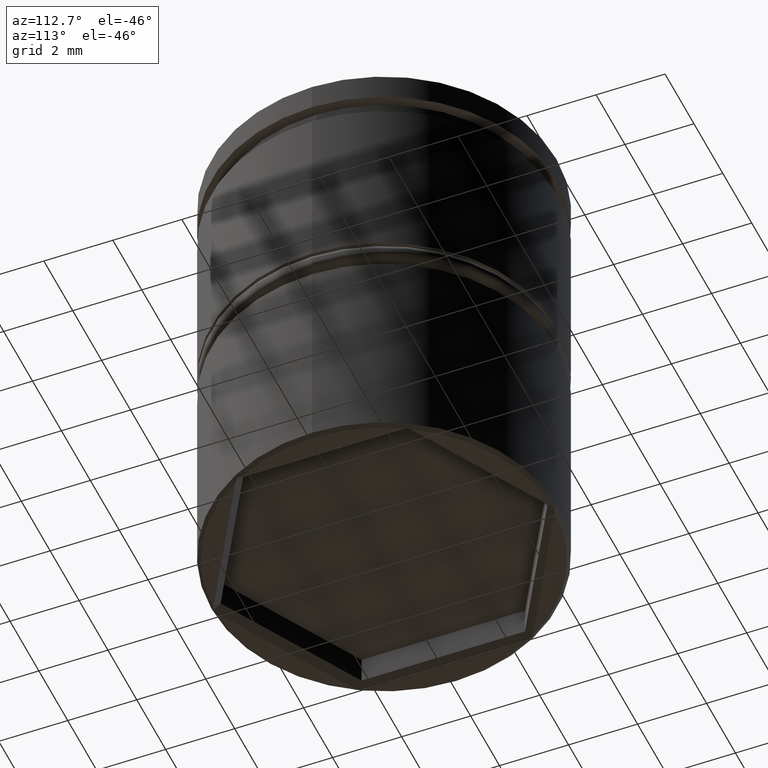
[diagram: clean part render]
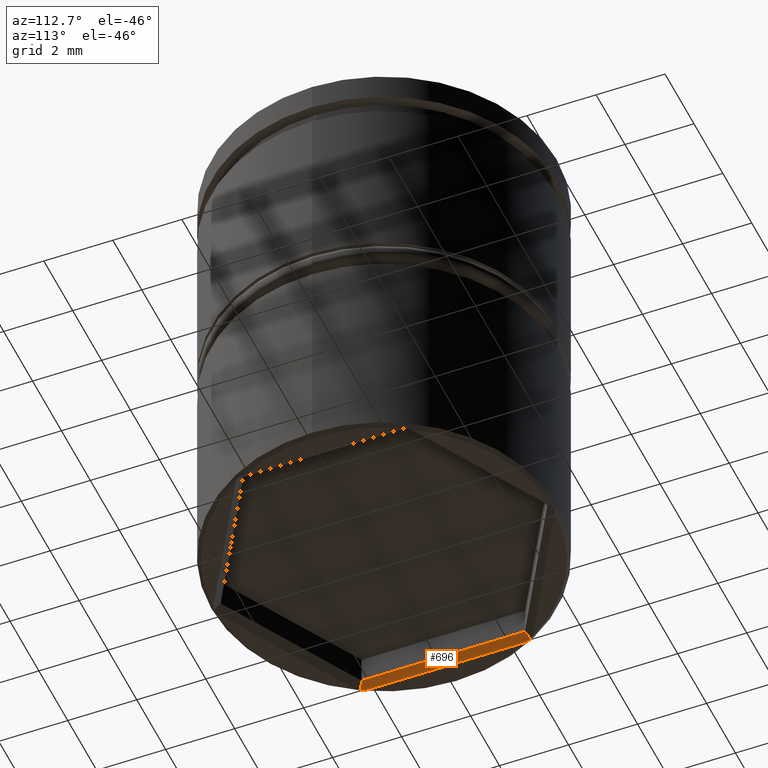
[diagram: same view with one face highlighted and labeled with its STEP entity id]
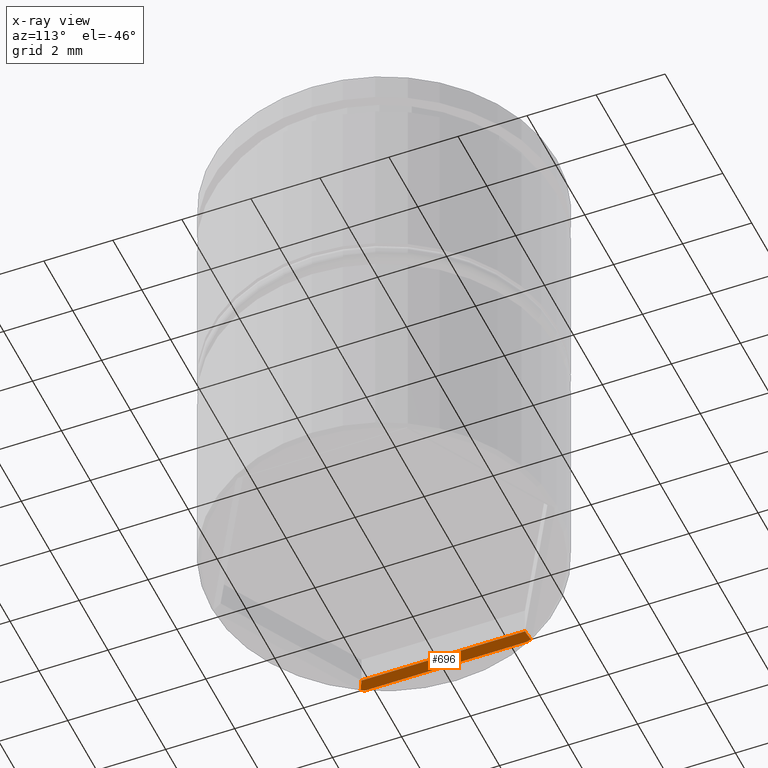
[diagram: x-ray of the same camera — body ghosted, the highlighted face saturated]
A machine part, auxiliary view. The second image highlights one B-rep face of the part: STEP entity #696.
The next image is the same camera in x-ray: the body ghosted, the highlighted face saturated — about 0% of this face is hidden behind the body in this view.
In plain terms, the highlighted planar face has unit normal (0.7071, 0, -0.7071).
Its self-contained STEP definition (entity closure, byte-faithful):
#49 = DIRECTION ( 'NONE',  ( 0.6546536707079813056, 0.3779644730092197036, 0.6546536707079773088 ) ) ;
#57 = VECTOR ( 'NONE', #775, 1000.000000000000000 ) ;
#60 = CARTESIAN_POINT ( 'NONE',  ( -4.300000000000001599, 2.349468024894149298, -13.50000000000000000 ) ) ;
#87 = CARTESIAN_POINT ( 'NONE',  ( -4.280035481254943264, -2.426690125759047412, -13.48003548125494433 ) ) ;
#157 = CARTESIAN_POINT ( 'NONE',  ( -4.269734859267344973, 2.465132570366331155, -13.46973485926734249 ) ) ;
#166 = VERTEX_POINT ( 'NONE', #214 ) ;
#198 = AXIS2_PLACEMENT_3D ( 'NONE', #1120, #1021, #379 ) ;
#201 = ORIENTED_EDGE ( 'NONE', *, *, #267, .T. ) ;
#210 = CARTESIAN_POINT ( 'NONE',  ( -4.100000000000002309, -2.367136103677466963, -13.30000000000000071 ) ) ;
#214 = CARTESIAN_POINT ( 'NONE',  ( -4.300000000000001599, -2.349468024894151075, -13.50000000000000000 ) ) ;
#236 = EDGE_CURVE ( 'NONE', #1196, #166, #1144, .T. ) ;
#266 = FACE_OUTER_BOUND ( 'NONE', #871, .T. ) ;
#267 = EDGE_CURVE ( 'NONE', #588, #531, #472, .T. ) ;
#274 = ORIENTED_EDGE ( 'NONE', *, *, #458, .F. ) ;
#328 = LINE ( 'NONE', #970, #57 ) ;
#358 = ORIENTED_EDGE ( 'NONE', *, *, #236, .F. ) ;
#379 = DIRECTION ( 'NONE',  ( 1.832090974069704843E-16, -1.000000000000000000, 0.000000000000000000 ) ) ;
#405 = CARTESIAN_POINT ( 'NONE',  ( -4.290125711785984564, -2.388133565606518793, -13.49012571178598208 ) ) ;
#406 = CARTESIAN_POINT ( 'NONE',  ( -4.100000000000002309, -2.367136103677466963, -13.30000000000000071 ) ) ;
#458 = EDGE_CURVE ( 'NONE', #166, #1236, #805, .T. ) ;
#472 = LINE ( 'NONE', #604, #1351 ) ;
#522 = CARTESIAN_POINT ( 'NONE',  ( -4.269734859267344973, -2.465132570366328491, -13.46973485926734426 ) ) ;
#531 = VERTEX_POINT ( 'NONE', #634 ) ;
#560 = ORIENTED_EDGE ( 'NONE', *, *, #581, .F. ) ;
#562 = B_SPLINE_CURVE_WITH_KNOTS ( 'NONE', 3,
 ( #157, #585, #1378, #962 ),
 .UNSPECIFIED., .F., .F.,
 ( 4, 4 ),
 ( 4.336808689942017736E-19, 0.0001233298202642885242 ),
 .UNSPECIFIED. ) ;
#581 = EDGE_CURVE ( 'NONE', #811, #531, #328, .T. ) ;
#585 = CARTESIAN_POINT ( 'NONE',  ( -4.280035481254944152, 2.426690125759048744, -13.48003548125494255 ) ) ;
#588 = VERTEX_POINT ( 'NONE', #1092 ) ;
#604 = CARTESIAN_POINT ( 'NONE',  ( -4.100000000000003197, 2.367136103677469183, -13.30000000000000071 ) ) ;
#634 = CARTESIAN_POINT ( 'NONE',  ( -4.100000000000003197, 2.367136103677469183, -13.30000000000000071 ) ) ;
#693 = DIRECTION ( 'NONE',  ( 1.832090974069704843E-16, -1.000000000000000000, 0.000000000000000000 ) ) ;
#696 = ADVANCED_FACE ( 'NONE', ( #266 ), #1233, .T. ) ;
#767 = ORIENTED_EDGE ( 'NONE', *, *, #786, .F. ) ;
#775 = DIRECTION ( 'NONE',  ( -1.832090974069704843E-16, 1.000000000000000000, 0.000000000000000000 ) ) ;
#786 = EDGE_CURVE ( 'NONE', #588, #1196, #562, .T. ) ;
#803 = LINE ( 'NONE', #406, #1356 ) ;
#805 = B_SPLINE_CURVE_WITH_KNOTS ( 'NONE', 3,
 ( #1360, #405, #87, #522 ),
 .UNSPECIFIED., .F., .F.,
 ( 4, 4 ),
 ( 0.000000000000000000, 0.0001233298202642834284 ),
 .UNSPECIFIED. ) ;
#811 = VERTEX_POINT ( 'NONE', #210 ) ;
#871 = EDGE_LOOP ( 'NONE', ( #201, #560, #1022, #274, #358, #767 ) ) ;
#929 = VECTOR ( 'NONE', #693, 1000.000000000000000 ) ;
#962 = CARTESIAN_POINT ( 'NONE',  ( -4.300000000000001599, 2.349468024894149298, -13.50000000000000000 ) ) ;
#970 = CARTESIAN_POINT ( 'NONE',  ( -4.100000000000003197, 2.367136103677469183, -13.30000000000000071 ) ) ;
#1021 = DIRECTION ( 'NONE',  ( 0.7071067811865453523, 1.295483951515351488E-16, -0.7071067811865496822 ) ) ;
#1022 = ORIENTED_EDGE ( 'NONE', *, *, #1291, .F. ) ;
#1035 = DIRECTION ( 'NONE',  ( 0.6546536707079796402, -0.3779644730092256988, 0.6546536707079754214 ) ) ;
#1092 = CARTESIAN_POINT ( 'NONE',  ( -4.269734859267344973, 2.465132570366331155, -13.46973485926734249 ) ) ;
#1120 = CARTESIAN_POINT ( 'NONE',  ( -4.100000000000002309, -2.367136103677466963, -13.30000000000000071 ) ) ;
#1129 = CARTESIAN_POINT ( 'NONE',  ( -4.300000000000001599, -2.367136103677466963, -13.50000000000000000 ) ) ;
#1144 = LINE ( 'NONE', #1129, #929 ) ;
#1196 = VERTEX_POINT ( 'NONE', #60 ) ;
#1233 = PLANE ( 'NONE',  #198 ) ;
#1236 = VERTEX_POINT ( 'NONE', #1376 ) ;
#1291 = EDGE_CURVE ( 'NONE', #1236, #811, #803, .T. ) ;
#1351 = VECTOR ( 'NONE', #1035, 1000.000000000000114 ) ;
#1356 = VECTOR ( 'NONE', #49, 1000.000000000000000 ) ;
#1360 = CARTESIAN_POINT ( 'NONE',  ( -4.300000000000001599, -2.349468024894151075, -13.50000000000000000 ) ) ;
#1376 = CARTESIAN_POINT ( 'NONE',  ( -4.269734859267344973, -2.465132570366328491, -13.46973485926734426 ) ) ;
#1378 = CARTESIAN_POINT ( 'NONE',  ( -4.290125711785985452, 2.388133565606518793, -13.49012571178598208 ) ) ;